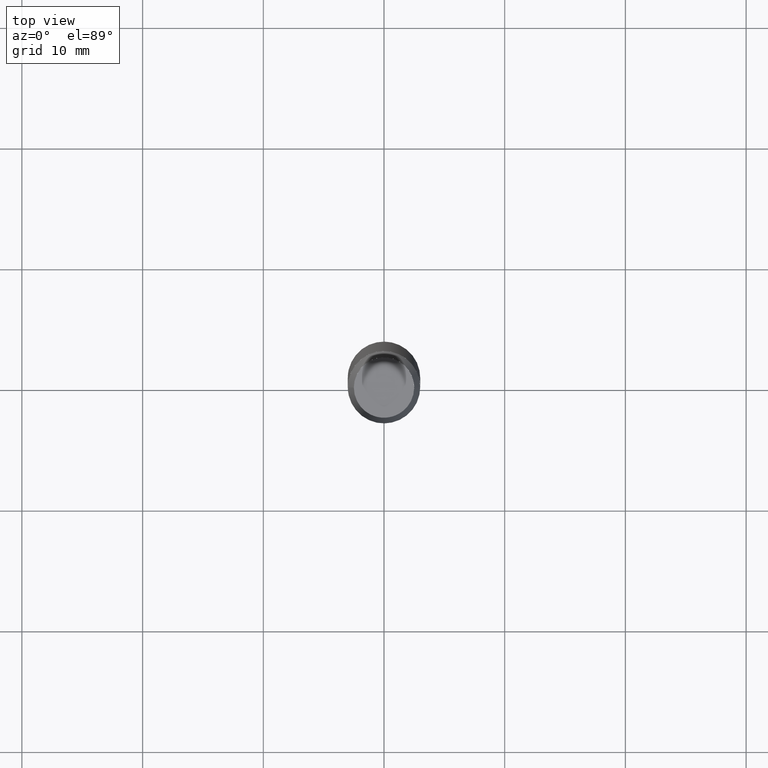
[diagram: clean part render]
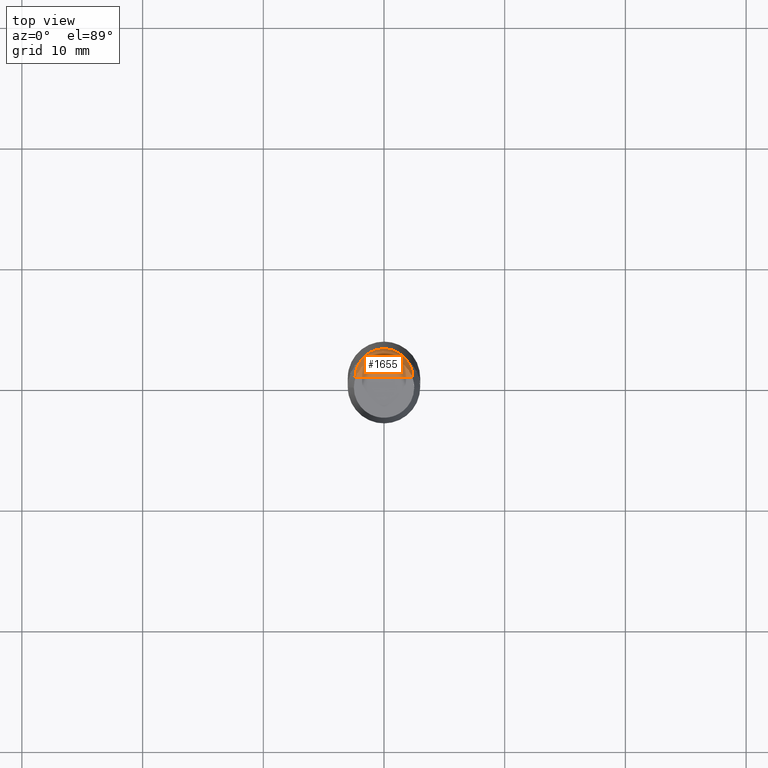
[diagram: same view with one face highlighted and labeled with its STEP entity id]
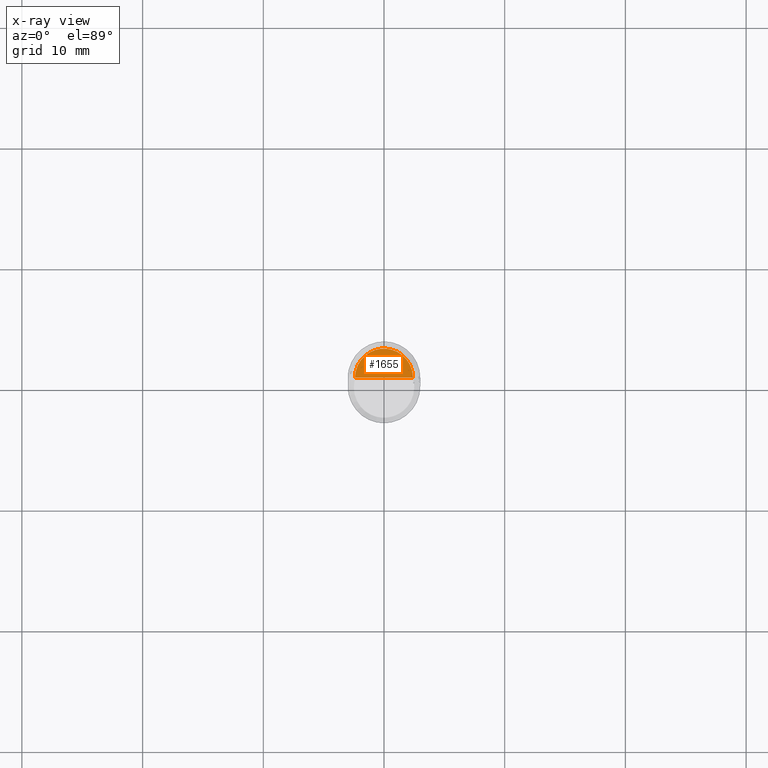
[diagram: x-ray of the same camera — body ghosted, the highlighted face saturated]
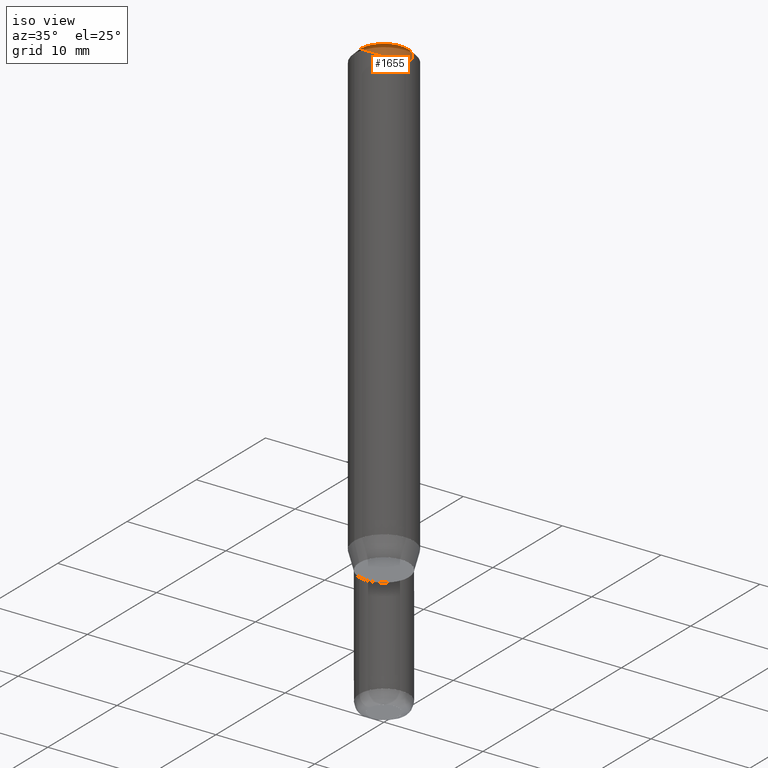
[diagram: same view with one face highlighted and labeled with its STEP entity id]
A machine part, top view. The second image highlights one B-rep face of the part: STEP entity #1655.
The next image is the same camera in x-ray: the body ghosted, the highlighted face saturated — about 0% of this face is hidden behind the body in this view.
A second angle (iso view) of the same face is appended — the face is thin or edge-on in the first view.
In plain terms, the highlighted face is a freeform B-spline surface patch.
Its self-contained STEP definition (entity closure, byte-faithful):
#1392=CARTESIAN_POINT('',(2.4,0.0,45.133974596216));
#1393=CARTESIAN_POINT('',(2.4,2.4,45.133974596216));
#1394=CARTESIAN_POINT('',(0.0,2.4,45.133974596216));
#1395=CARTESIAN_POINT('',(-2.4,2.4,45.133974596216));
#1396=CARTESIAN_POINT('',(-2.4,0.0,45.133974596216));
#1397=CARTESIAN_POINT('',(0.0,0.0,45.133974596216));
#1640=(
BOUNDED_SURFACE()
B_SPLINE_SURFACE(1,2,(
(#1392,#1393,#1394,#1395,#1396),
(#1397,#1397,#1397,#1397,#1397)
), .UNSPECIFIED.,.F.,.F.,.F.)
B_SPLINE_SURFACE_WITH_KNOTS((2,2),(3,2,3),(
0.0,1.0),(
0.0,0.5,1.0), .UNSPECIFIED.)
GEOMETRIC_REPRESENTATION_ITEM()
RATIONAL_B_SPLINE_SURFACE(((1.0,0.707106781187,1.0,0.707106781187,1.0),
(1.0,0.707106781187,1.0,0.707106781187,1.0)
))
REPRESENTATION_ITEM('')
SURFACE()
);
#1641=(
BOUNDED_CURVE()
B_SPLINE_CURVE(1,(#1397,#1392),.UNSPECIFIED.,.F.,.F.)
B_SPLINE_CURVE_WITH_KNOTS((2,2),
(0.0,1.0),.UNSPECIFIED.)
CURVE()
GEOMETRIC_REPRESENTATION_ITEM()
RATIONAL_B_SPLINE_CURVE((1.0,1.0))
REPRESENTATION_ITEM('')
);
#1642=(
BOUNDED_CURVE()
B_SPLINE_CURVE(2,(#1392,#1393,#1394,#1395,#1396),.UNSPECIFIED.,.F.,.F.)
B_SPLINE_CURVE_WITH_KNOTS((3,2,3),
(0.0,0.5,1.0),.UNSPECIFIED.)
CURVE()
GEOMETRIC_REPRESENTATION_ITEM()
RATIONAL_B_SPLINE_CURVE((1.0,0.707106781187,1.0,0.707106781187,1.0))
REPRESENTATION_ITEM('')
);
#1643=(
BOUNDED_CURVE()
B_SPLINE_CURVE(1,(#1396,#1397),.UNSPECIFIED.,.F.,.F.)
B_SPLINE_CURVE_WITH_KNOTS((2,2),
(0.0,1.0),.UNSPECIFIED.)
CURVE()
GEOMETRIC_REPRESENTATION_ITEM()
RATIONAL_B_SPLINE_CURVE((1.0,1.0))
REPRESENTATION_ITEM('')
);
#1644=VERTEX_POINT('',#1392);
#1645=VERTEX_POINT('',#1396);
#1646=VERTEX_POINT('',#1397);
#1647=EDGE_CURVE('',#1646,#1644,#1641,.T.);
#1648=EDGE_CURVE('',#1644,#1645,#1642,.T.);
#1649=EDGE_CURVE('',#1645,#1646,#1643,.T.);
#1650=ORIENTED_EDGE('',*,*,#1647,.T.);
#1651=ORIENTED_EDGE('',*,*,#1648,.T.);
#1652=ORIENTED_EDGE('',*,*,#1649,.T.);
#1653=EDGE_LOOP('',(#1650,#1651,#1652));
#1654=FACE_OUTER_BOUND('',#1653,.T.);
#1655=ADVANCED_FACE('',(#1654),#1640,.T.);